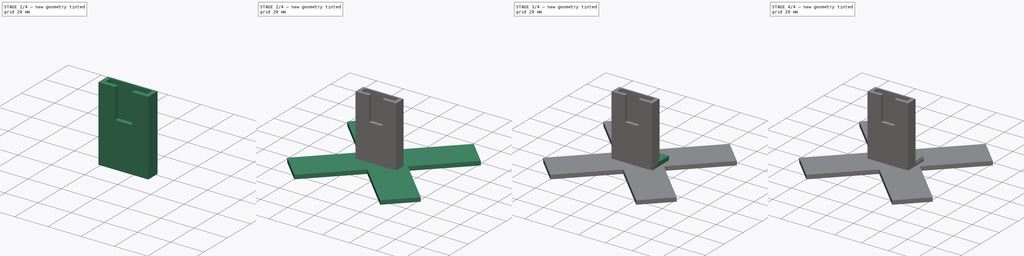
[diagram: build sequence overview — one tinted view per stage of 4, left to right]
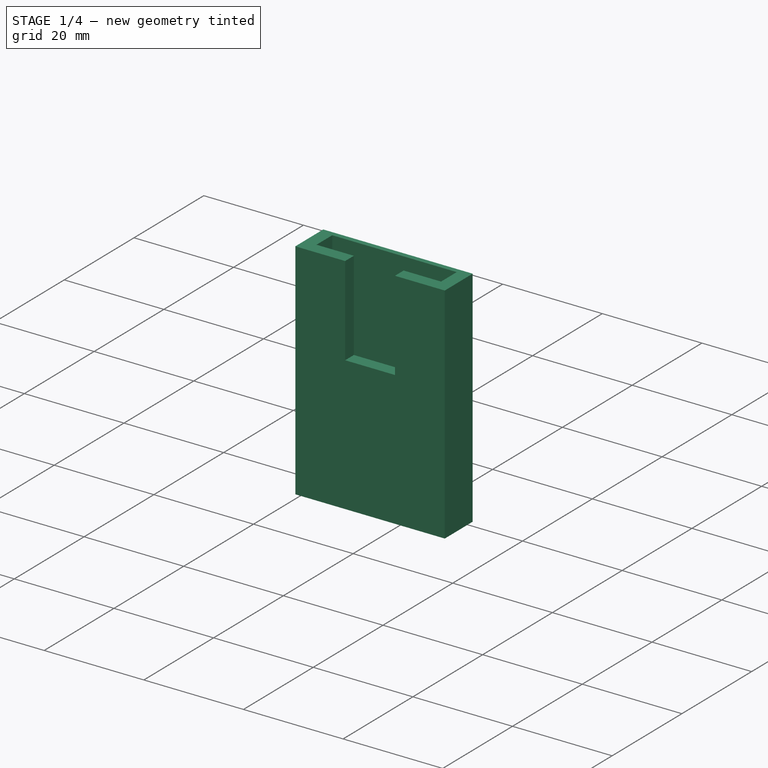
[diagram: stage 1 of 4 — iso view after this stage's code; geometry added in this stage tinted green]
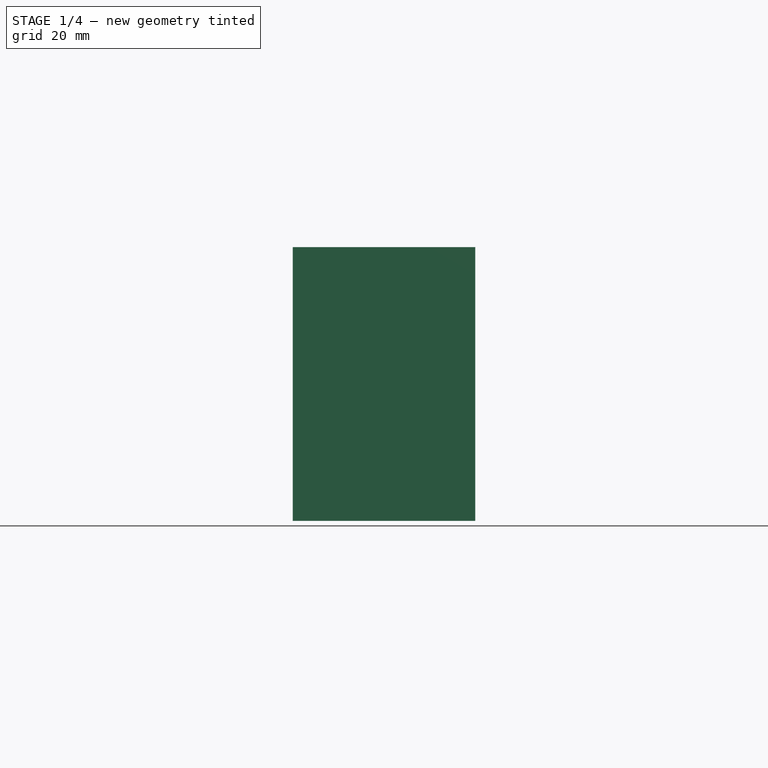
[diagram: stage 1 of 4 — front view after this stage's code; geometry added in this stage tinted green]
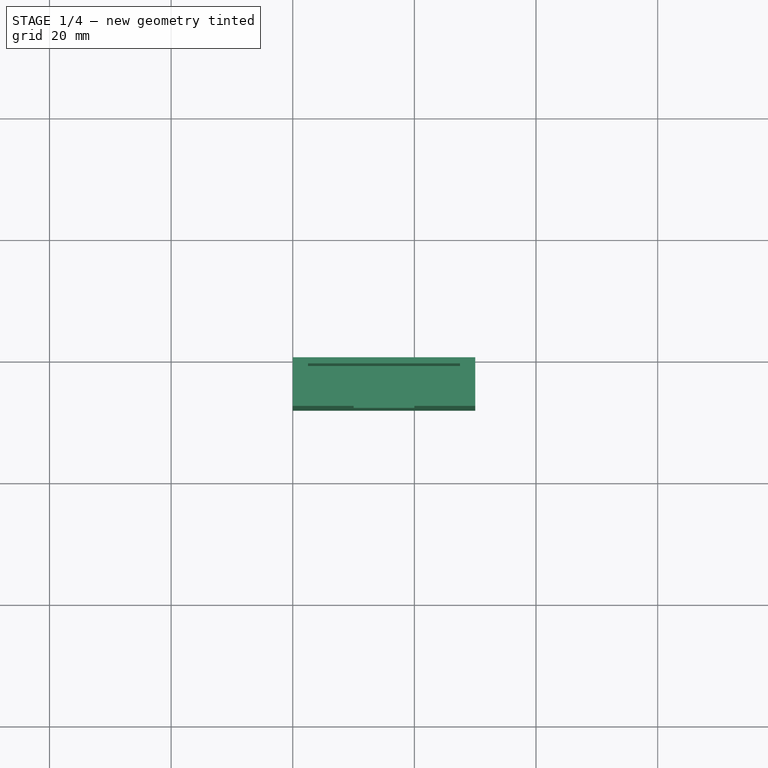
[diagram: stage 1 of 4 — top view after this stage's code; geometry added in this stage tinted green]
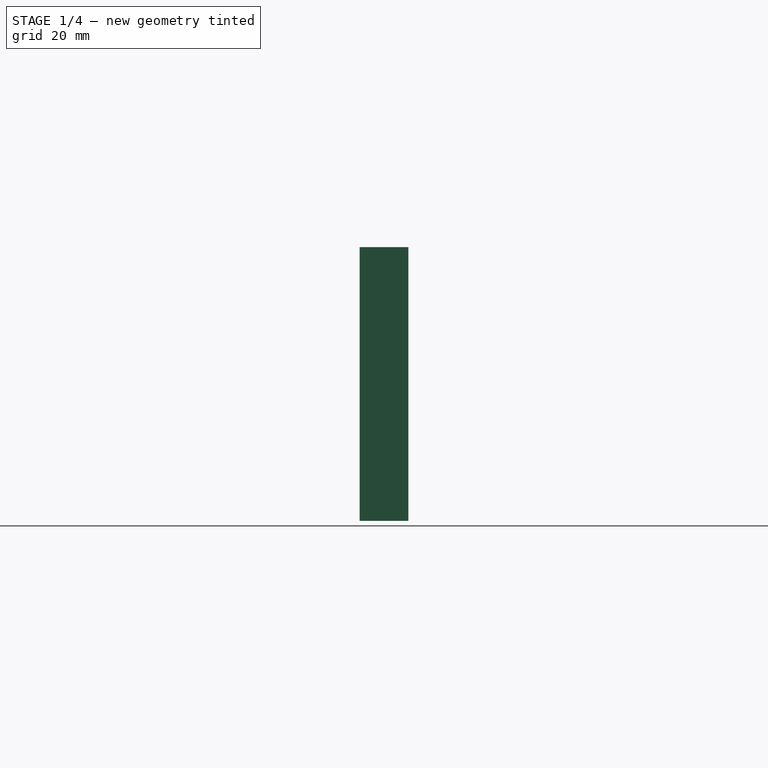
[diagram: stage 1 of 4 — right view after this stage's code; geometry added in this stage tinted green]
FCSTD DOCUMENT  (FreeCAD 0.18.4R)
Label: holder_dashcam
License: All rights reserved
LicenseURL: http://en.wikipedia.org/wiki/All_rights_reserved
objects: Sketcher::SketchObject×8, PartDesign::Pocket×5, PartDesign::Pad×4, PartDesign::Fillet×3, PartDesign::Body×1
note: 30 computed .brp shape members not serialized (recipe doc carries the construction recipe); baked Part::Feature solids carry a one-line shape summary decoded from their .brp

FEATURE [Sketcher::SketchObject] Sketch  label="holder"
  MapMode = 5
  Placement = pos=(0,0,0) rot=(1,0,0;1.5708rad)
  Support = -> [XZ_Plane]
  sketch-geometry (4):
    g0: LineSegment StartX=80 StartY=3 StartZ=0 EndX=110 EndY=3 EndZ=0
    g1: LineSegment StartX=110 StartY=3 StartZ=0 EndX=110 EndY=48 EndZ=0
    g2: LineSegment StartX=110 StartY=48 StartZ=0 EndX=80 EndY=48 EndZ=0
    g3: LineSegment StartX=80 StartY=48 StartZ=0 EndX=80 EndY=3 EndZ=0
  constraints (12):
    c: Coincident(g0,g1)
    c: Coincident(g1,g2)
    c: Coincident(g2,g3)
    c: Coincident(g3,g0)
    c: Horizontal(g0)
    c: Horizontal(g2)
    c: Vertical(g1)
    c: Vertical(g3)
    c: Distance(g2) = 30
    c: Distance(g1) = 45
    c: DistanceY(g-1,g0) = 3
    c: DistanceX(g-1,g2) = 80
FEATURE [PartDesign::Pad] Pad
  Length = 8
  Length2 = 100
  Placement = pos=(0,0,0) rot=(1,0,0;1.5708rad)
  Profile = -> Sketch
  Refine = true
  Type = 0
FEATURE [Sketcher::SketchObject] Sketch001  label="camera_cavity"
  ExternalGeometry = -> [Pad]
  MapMode = 5
  Placement = pos=(0,1.07e-14,48) rot=(0,0,1;3.14159rad)
  Support = -> [Pad]
  sketch-geometry (4):
    g0: LineSegment StartX=-107.5 StartY=5.5 StartZ=0 EndX=-82.5 EndY=5.5 EndZ=0
    g1: LineSegment StartX=-82.5 StartY=5.5 StartZ=0 EndX=-82.5 EndY=1 EndZ=0
    g2: LineSegment StartX=-82.5 StartY=1 StartZ=0 EndX=-107.5 EndY=1 EndZ=0
    g3: LineSegment StartX=-107.5 StartY=1 StartZ=0 EndX=-107.5 EndY=5.5 EndZ=0
  constraints (12):
    c: Coincident(g0,g1)
    c: Coincident(g1,g2)
    c: Coincident(g2,g3)
    c: Coincident(g3,g0)
    c: Horizontal(g0)
    c: Horizontal(g2)
    c: Vertical(g1)
    c: Vertical(g3)
    c: Distance(g3) = 4.5
    c: Distance(g2) = 25
    c: DistanceX(g0,g-3) = 2.5
    c: DistanceY(g0,g-4) = 2.5
FEATURE [PartDesign::Pocket] Pocket
  BaseFeature = -> Pad
  Length = 25
  Length2 = 100
  Placement = pos=(0,0,0) rot=(1,0,0;1.5708rad)
  Profile = -> Sketch001
  Refine = true
  Type = 0
FEATURE [Sketcher::SketchObject] Sketch002  label="camera_whole"
  ExternalGeometry = -> [Pocket]
  MapMode = 5
  Placement = pos=(0,-8,0) rot=(1,0,0;1.5708rad)
  Support = -> [Pocket]
  sketch-geometry (4):
    g0: LineSegment StartX=90 StartY=48 StartZ=0 EndX=100 EndY=48 EndZ=0
    g1: LineSegment StartX=100 StartY=48 StartZ=0 EndX=100 EndY=30 EndZ=0
    g2: LineSegment StartX=100 StartY=30 StartZ=0 EndX=90 EndY=30 EndZ=0
    g3: LineSegment StartX=90 StartY=30 StartZ=0 EndX=90 EndY=48 EndZ=0
  constraints (14):
    c: Coincident(g0,g1)
    c: Coincident(g1,g2)
    c: Coincident(g2,g3)
    c: Coincident(g3,g0)
    c: Horizontal(g0)
    c: Horizontal(g2)
    c: Vertical(g1)
    c: Vertical(g3)
    c: DistanceY(g-3) = 48
    c: DistanceY(g-3) = 48
    c: DistanceY(g0,g-3) = 0
    c: DistanceX(g0,g-4) = 10
    c: DistanceX(g-3,g0) = 10
    c: Distance(g1) = 18
FEATURE [PartDesign::Pocket] Pocket001
  BaseFeature = -> Pocket
  Length = 3
  Length2 = 100
  Placement = pos=(0,0,0) rot=(1,0,0;1.5708rad)
  Profile = -> Sketch002
  Refine = true
  Type = 0
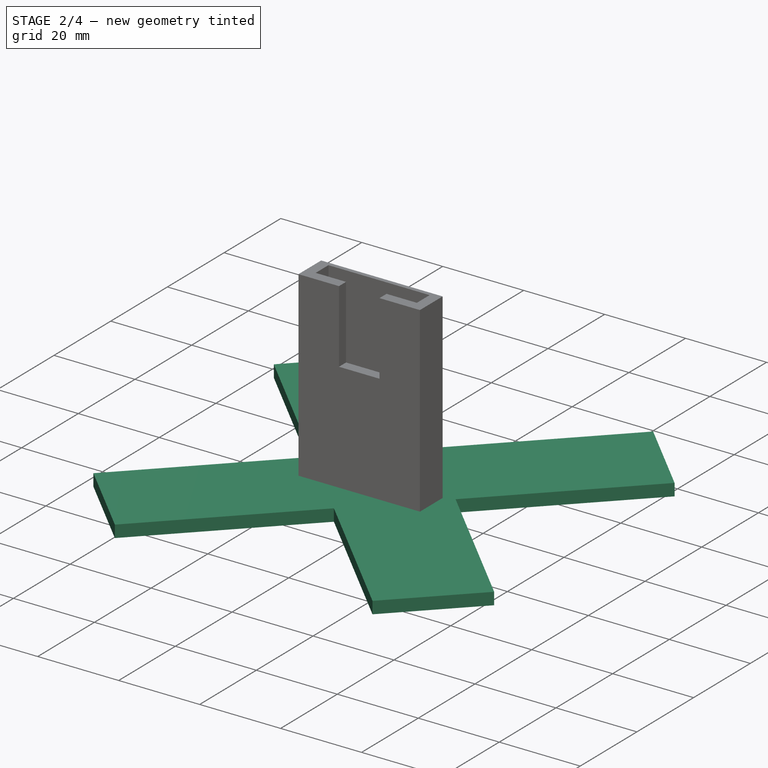
[diagram: stage 2 of 4 — iso view after this stage's code; geometry added in this stage tinted green]
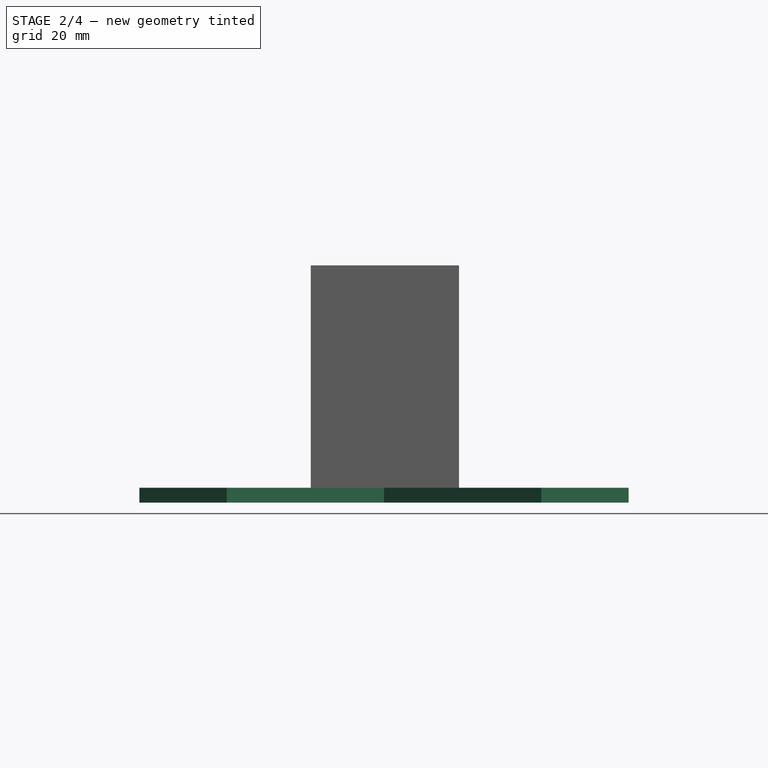
[diagram: stage 2 of 4 — front view after this stage's code; geometry added in this stage tinted green]
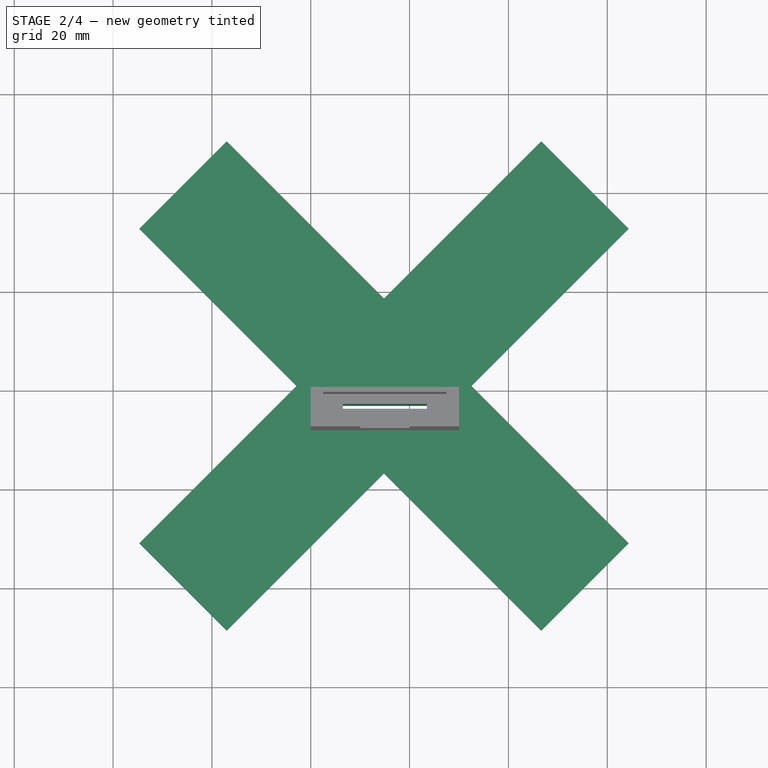
[diagram: stage 2 of 4 — top view after this stage's code; geometry added in this stage tinted green]
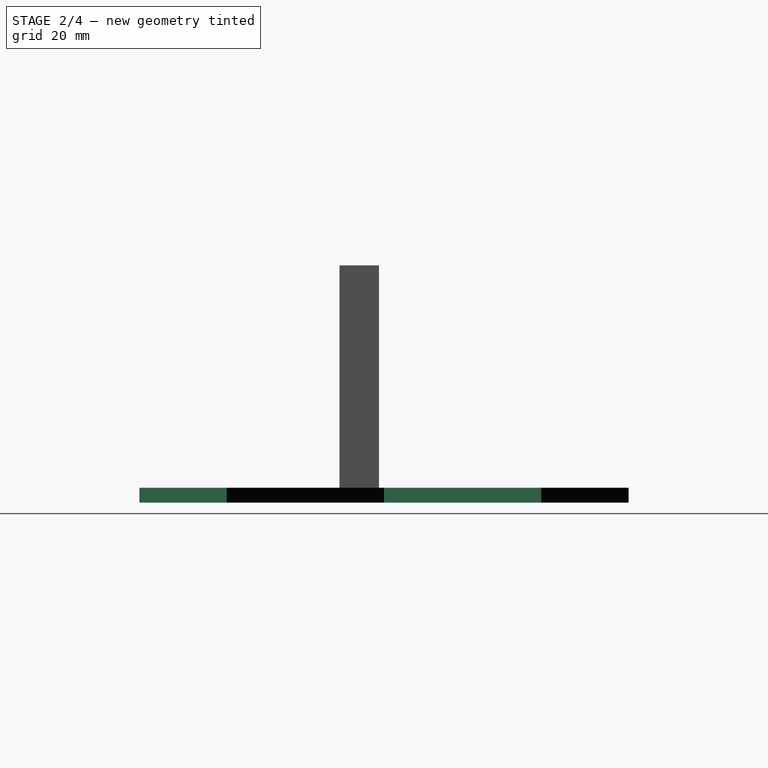
[diagram: stage 2 of 4 — right view after this stage's code; geometry added in this stage tinted green]
FEATURE [Sketcher::SketchObject] Sketch003  label="cable_canal"
  ExternalGeometry = -> [Pocket001]
  MapMode = 5
  Placement = pos=(0,7e-16,3) rot=(1,0,0;3.14159rad)
  Support = -> [Pocket001]
  sketch-geometry (4):
    g0: LineSegment StartX=86.5 StartY=4 StartZ=0 EndX=103.5 EndY=4 EndZ=0
    g1: LineSegment StartX=103.5 StartY=4 StartZ=0 EndX=103.5 EndY=3 EndZ=0
    g2: LineSegment StartX=103.5 StartY=3 StartZ=0 EndX=86.5 EndY=3 EndZ=0
    g3: LineSegment StartX=86.5 StartY=3 StartZ=0 EndX=86.5 EndY=4 EndZ=0
  constraints (12):
    c: Coincident(g0,g1)
    c: Coincident(g1,g2)
    c: Coincident(g2,g3)
    c: Coincident(g3,g0)
    c: Horizontal(g0)
    c: Horizontal(g2)
    c: Vertical(g1)
    c: Vertical(g3)
    c: DistanceX(g-4,g0) = 6.5
    c: DistanceX(g0,g-3) = 6.5
    c: Distance(g1) = 1
    c: DistanceY(g0,g-4) = 4
FEATURE [PartDesign::Pocket] Pocket002
  BaseFeature = -> Pocket001
  Length = 40
  Length2 = 100
  Placement = pos=(0,0,0) rot=(1,0,0;1.5708rad)
  Profile = -> Sketch003
  Refine = true
  Type = 0
FEATURE [Sketcher::SketchObject] Sketch005  label="base"
  MapMode = 5
  Placement = pos=(0,7e-16,3) rot=(1,0,0;3.14159rad)
  sketch-geometry (17):
    g0: LineSegment StartX=45.3249 StartY=30.8199 StartZ=0 EndX=63.0026 EndY=48.4976 EndZ=0
    g1: LineSegment StartX=63.0026 StartY=48.4976 StartZ=0 EndX=94.8224 EndY=16.6777 EndZ=0
    g2: LineSegment StartX=94.8224 StartY=16.6777 StartZ=0 EndX=126.642 EndY=48.4975 EndZ=0
    g3: LineSegment StartX=126.642 StartY=48.4975 StartZ=0 EndX=144.32 EndY=30.8198 EndZ=0
    g4: LineSegment StartX=144.32 StartY=30.8198 StartZ=0 EndX=112.5 EndY=-1 EndZ=0
    g5: LineSegment StartX=112.5 StartY=-1 StartZ=0 EndX=144.32 EndY=-32.8199 EndZ=0
    g6: LineSegment StartX=144.32 StartY=-32.8199 StartZ=0 EndX=126.642 EndY=-50.4975 EndZ=0
    g7: LineSegment StartX=126.642 StartY=-50.4975 StartZ=0 EndX=94.8224 EndY=-18.6777 EndZ=0
    g8: LineSegment StartX=94.8224 StartY=-18.6777 StartZ=0 EndX=63.0025 EndY=-50.4975 EndZ=0
    g9: LineSegment StartX=63.0025 StartY=-50.4975 StartZ=0 EndX=45.3249 EndY=-32.8198 EndZ=0
    g10: LineSegment StartX=45.3249 StartY=-32.8198 StartZ=0 EndX=77.1447 EndY=-1 EndZ=0
    g11: LineSegment StartX=77.1447 StartY=-1 StartZ=0 EndX=45.3249 EndY=30.8199 EndZ=0
    g12: LineSegment [constr] StartX=112.5 StartY=-1 StartZ=0 EndX=94.8224 EndY=16.6777 EndZ=0
    g13: GeomPoint X=94.8224 Y=16.6777 Z=0
    g14: GeomPoint X=94.8224 Y=16.6777 Z=0
    g15: LineSegment [constr] StartX=94.8224 StartY=16.6777 StartZ=0 EndX=77.1447 EndY=-1 EndZ=0
    g16: LineSegment [constr] StartX=77.1447 StartY=-1 StartZ=0 EndX=112.5 EndY=-1 EndZ=0
  constraints (42):
    c: Coincident(g0,g1)
    c: Coincident(g1,g2)
    c: Coincident(g2,g3)
    c: Coincident(g3,g4)
    c: Coincident(g4,g5)
    c: Coincident(g5,g6)
    c: Coincident(g6,g7)
    c: Coincident(g7,g8)
    c: Coincident(g8,g9)
    c: Coincident(g9,g10)
    c: Coincident(g10,g11)
    c: Coincident(g11,g0)
    c: Parallel(g11,g1)
    c: Parallel(g2,g4)
    c: Parallel(g5,g7)
    c: Parallel(g8,g10)
    c: Parallel(g9,g3)
    c: Parallel(g6,g0)
    c: Perpendicular(g3,g2)
    c: Perpendicular(g1,g0)
    c: Perpendicular(g9,g10)
    c: Perpendicular(g6,g5)
    c: Equal(g0,g9)
    c: Equal(g3,g0)
    c: Equal(g3,g6)
    c: Distance(g9) = 25
    c: Coincident(g12,g4)
    c: Coincident(g13,g12)
    c: Coincident(g14,g1)
    c: Coincident(g13,g1)
    c: Coincident(g15,g10)
    c: Coincident(g15,g1)
    c: Equal(g15,g12)
    c: Perpendicular(g2,g12)
    c: Equal(g10,g2)
    c: Equal(g1,g5)
    c: Equal(g1,g2)
    c: Distance(g10) = 45
    c: Perpendicular(g5,g4)
    c: Coincident(g16,g10)
    c: Coincident(g16,g4)
    c: Distance(g16) = 35.3553
FEATURE [PartDesign::Pad] Pad001
  BaseFeature = -> Pocket002
  Length = 3
  Length2 = 100
  Placement = pos=(0,0,0) rot=(1,0,0;1.5708rad)
  Profile = -> Sketch005
  Refine = true
  Type = 0
FEATURE [Sketcher::SketchObject] CopySketch009
  Placement = pos=(0,0,3) rot=(1,0,0;3.14159rad)
  sketch-geometry (4):
    g0: LineSegment StartX=86.5 StartY=4 StartZ=0 EndX=103.5 EndY=4 EndZ=0
    g1: LineSegment StartX=103.5 StartY=4 StartZ=0 EndX=103.5 EndY=3 EndZ=0
    g2: LineSegment StartX=103.5 StartY=3 StartZ=0 EndX=86.5 EndY=3 EndZ=0
    g3: LineSegment StartX=86.5 StartY=3 StartZ=0 EndX=86.5 EndY=4 EndZ=0
  constraints (9):
    c: Coincident(g0,g1)
    c: Coincident(g1,g2)
    c: Coincident(g2,g3)
    c: Coincident(g3,g0)
    c: Horizontal(g0)
    c: Horizontal(g2)
    c: Vertical(g1)
    c: Vertical(g3)
    c: Distance(g1) = 1
FEATURE [PartDesign::Pocket] Pocket006
  BaseFeature = -> Pad001
  Length = 11
  Length2 = 100
  Placement = pos=(0,0,0) rot=(1,0,0;1.5708rad)
  Profile = -> CopySketch009
  Refine = true
  Reversed = true
  Type = 0
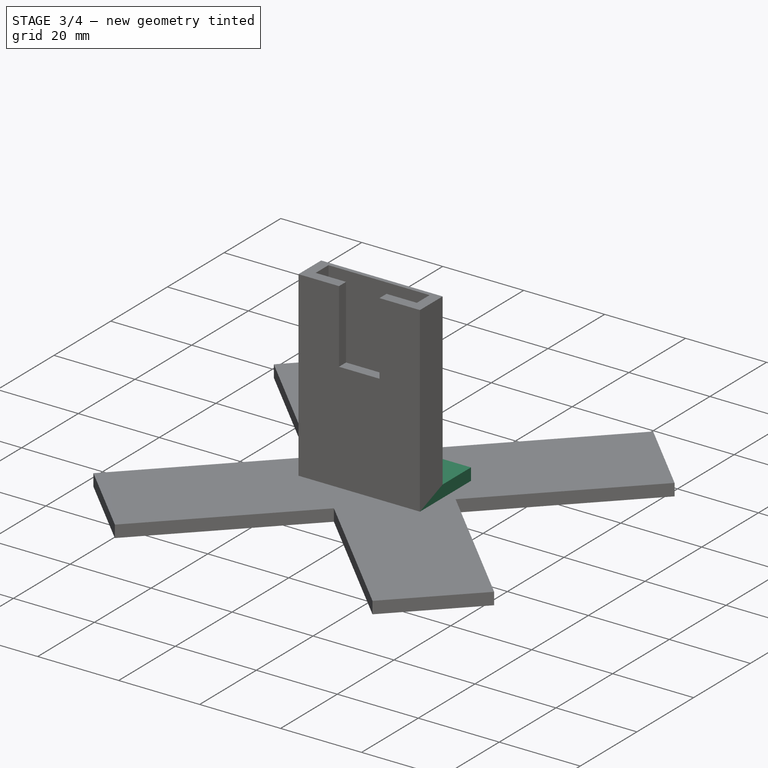
[diagram: stage 3 of 4 — iso view after this stage's code; geometry added in this stage tinted green]
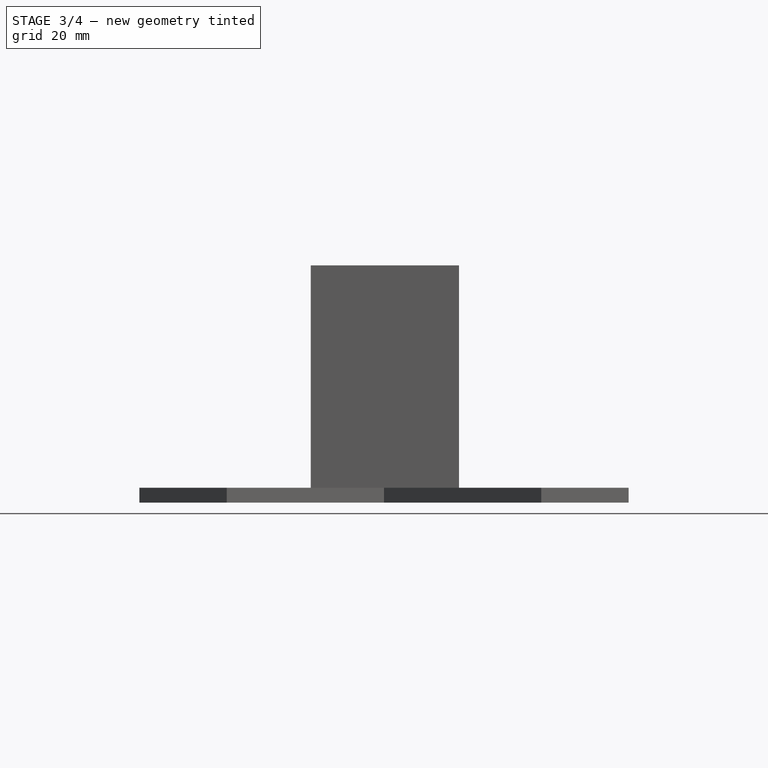
[diagram: stage 3 of 4 — front view after this stage's code; geometry added in this stage tinted green]
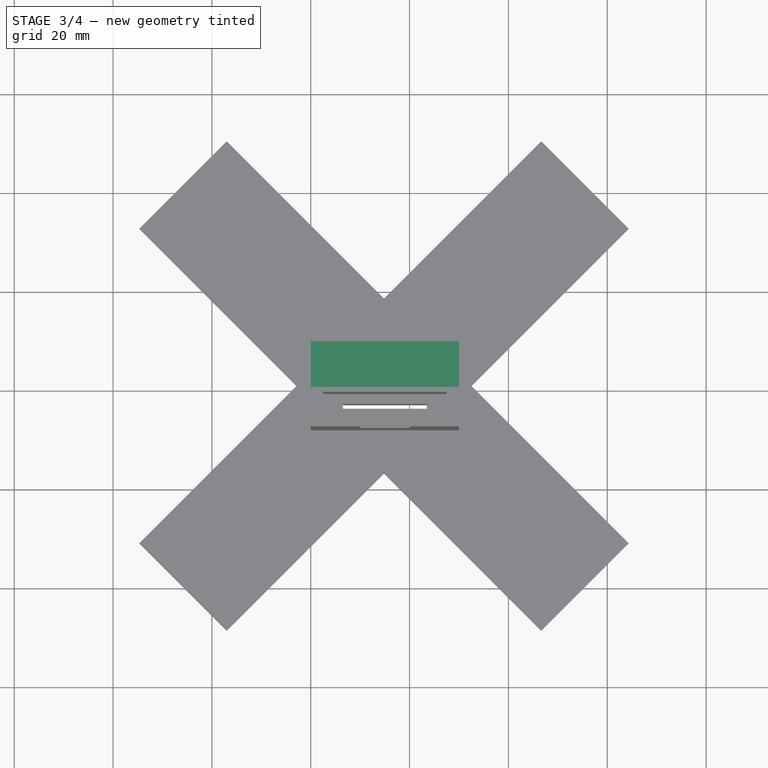
[diagram: stage 3 of 4 — top view after this stage's code; geometry added in this stage tinted green]
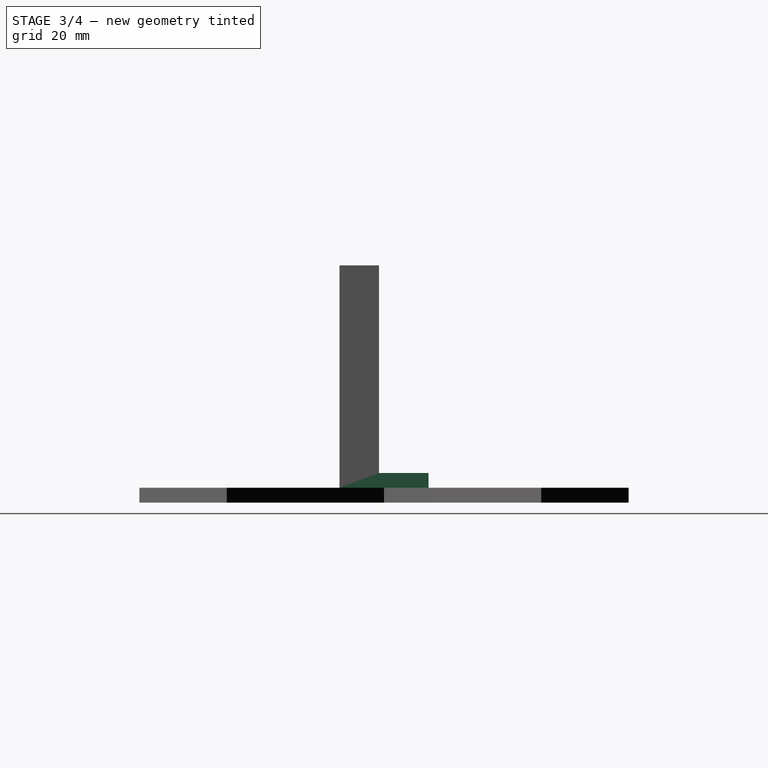
[diagram: stage 3 of 4 — right view after this stage's code; geometry added in this stage tinted green]
FEATURE [Sketcher::SketchObject] Sketch010
  ExternalGeometry = -> [Pocket006]
  MapMode = 5
  Placement = pos=(0,0,1.3e-15) rot=(1,0,0;3.14159rad)
  Support = -> [Pocket006]
  sketch-geometry (4):
    g0: LineSegment StartX=86.5 StartY=3 StartZ=0 EndX=103.5 EndY=3 EndZ=0
    g1: LineSegment StartX=103.5 StartY=3 StartZ=0 EndX=103.5 EndY=-29.76 EndZ=0
    g2: LineSegment StartX=103.5 StartY=-29.76 StartZ=0 EndX=86.5 EndY=-29.76 EndZ=0
    g3: LineSegment StartX=86.5 StartY=-29.76 StartZ=0 EndX=86.5 EndY=3 EndZ=0
  constraints (11):
    c: Coincident(g0,g1)
    c: Coincident(g1,g2)
    c: Coincident(g2,g3)
    c: Coincident(g3,g0)
    c: Horizontal(g0)
    c: Horizontal(g2)
    c: Vertical(g1)
    c: Vertical(g3)
    c: Coincident(g0,g-4)
    c: Equal(g0,g-3)
    c: Distance(g1) = 32.76
FEATURE [PartDesign::Pocket] Pocket007
  BaseFeature = -> Pocket006
  Length = 1.5
  Length2 = 100
  Placement = pos=(0,0,0) rot=(1,0,0;1.5708rad)
  Profile = -> Sketch010
  Refine = true
  Type = 0
FEATURE [PartDesign::Fillet] Fillet
  Base = -> Pocket007 [Edge65]
  BaseFeature = -> Pocket007
  Placement = pos=(0,0,0) rot=(1,0,0;1.5708rad)
  Radius = 5
FEATURE [Sketcher::SketchObject] Sketch011
  ExternalGeometry = -> [Fillet]
  MapMode = 5
  Placement = pos=(0,0,0) rot=(-1,0,0;1.5708rad)
  Support = -> [Fillet]
  sketch-geometry (6):
    g0: LineSegment StartX=80 StartY=-3 StartZ=0 EndX=110 EndY=-3 EndZ=0
    g1: LineSegment StartX=110 StartY=-3 StartZ=0 EndX=110 EndY=-6 EndZ=0
    g2: LineSegment StartX=110 StartY=-6 StartZ=0 EndX=80 EndY=-6 EndZ=0
    g3: LineSegment StartX=80 StartY=-6 StartZ=0 EndX=80 EndY=-3 EndZ=0
    g4: GeomPoint X=110 Y=-3 Z=0
    g5: GeomPoint X=110 Y=-3 Z=0
  constraints (13):
    c: Coincident(g0,g1)
    c: Coincident(g1,g2)
    c: Coincident(g2,g3)
    c: Coincident(g3,g0)
    c: Horizontal(g0)
    c: Horizontal(g2)
    c: Vertical(g1)
    c: Vertical(g3)
    c: Coincident(g4,g0)
    c: Coincident(g0,g5)
    c: Coincident(g0,g-4)
    c: Equal(g0,g-7)
    c: DistanceY(g1,g0) = 3
FEATURE [PartDesign::Pad] Pad003
  BaseFeature = -> Fillet
  Length = 10
  Length2 = 100
  Placement = pos=(0,0,0) rot=(1,0,0;1.5708rad)
  Profile = -> Sketch011
  Refine = true
  Type = 0
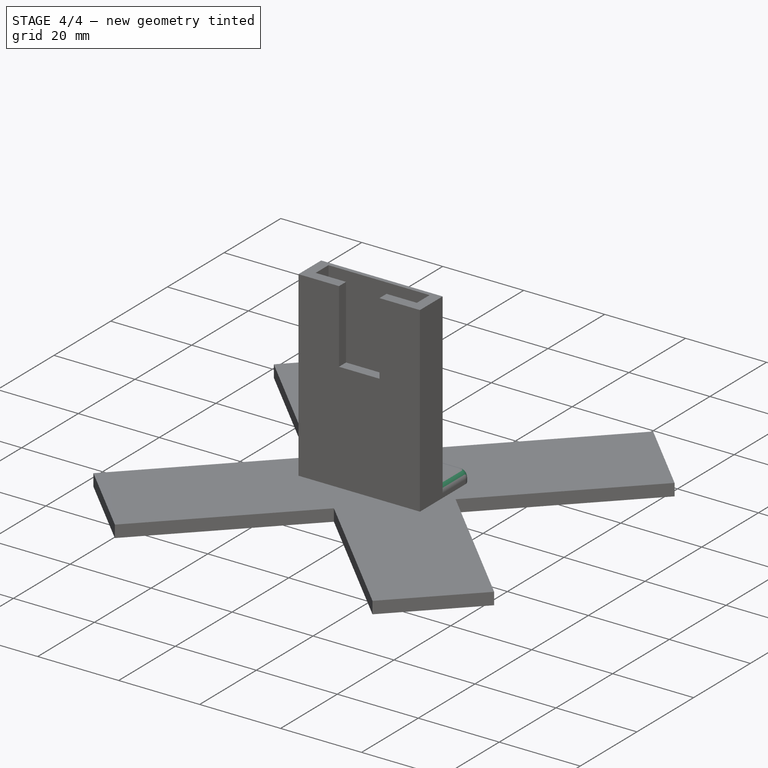
[diagram: stage 4 of 4 — iso view after this stage's code; geometry added in this stage tinted green]
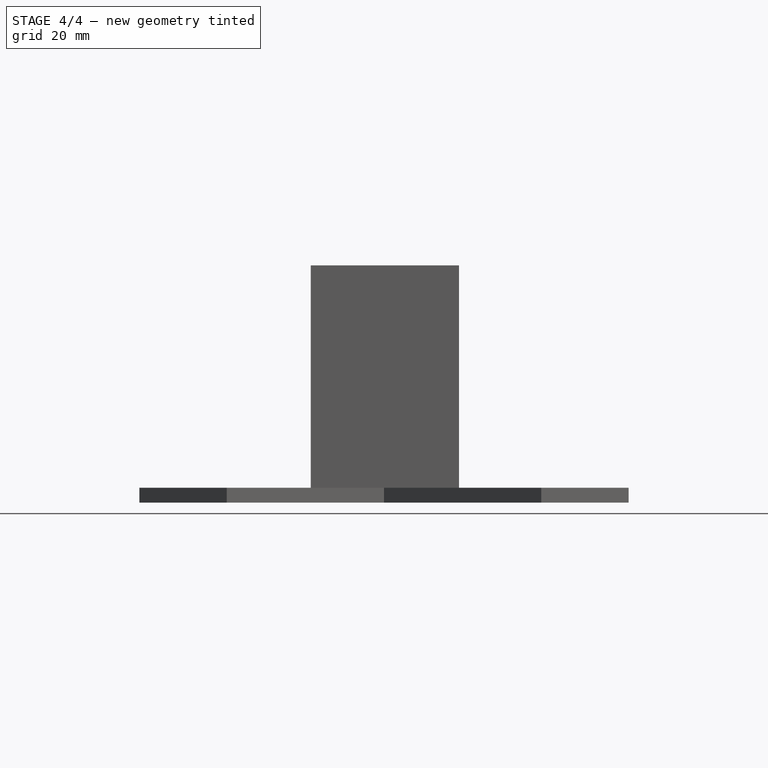
[diagram: stage 4 of 4 — front view after this stage's code; geometry added in this stage tinted green]
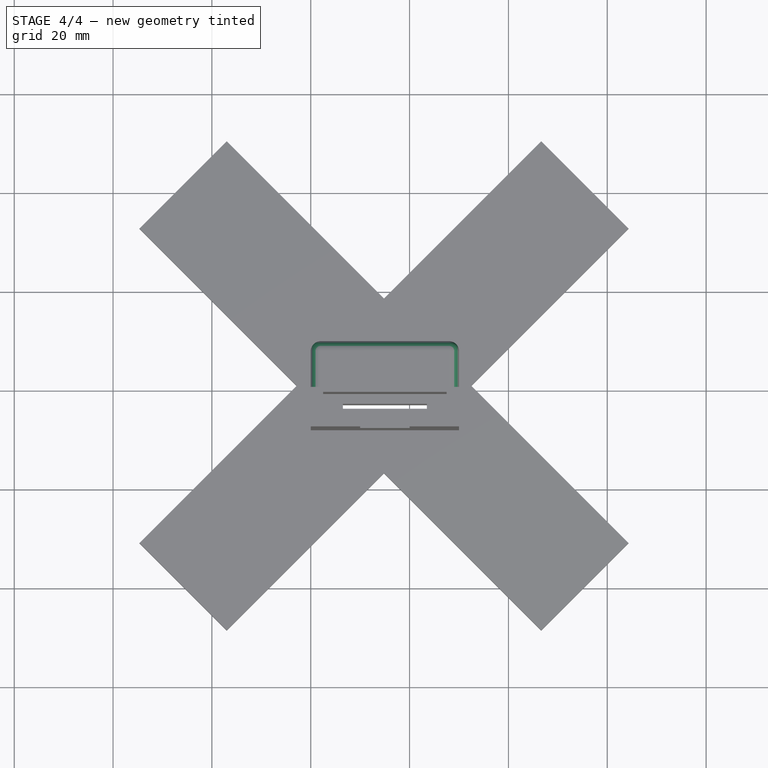
[diagram: stage 4 of 4 — top view after this stage's code; geometry added in this stage tinted green]
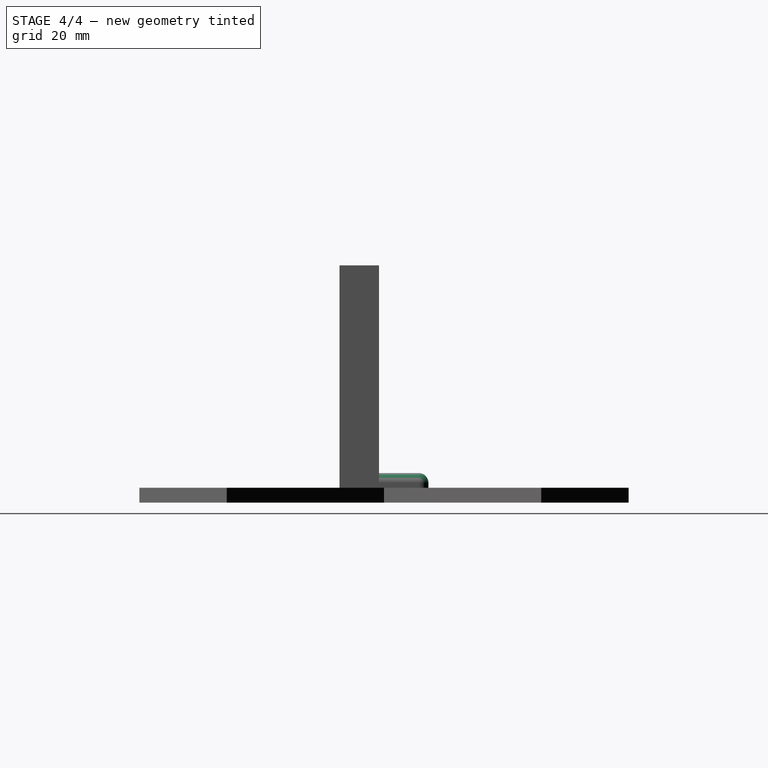
[diagram: stage 4 of 4 — right view after this stage's code; geometry added in this stage tinted green]
FEATURE [PartDesign::Fillet] Fillet001
  Base = -> Pad003 [Edge98,Edge85,Edge86,Edge99,Edge87]
  BaseFeature = -> Pad003
  Placement = pos=(0,0,0) rot=(1,0,0;1.5708rad)
  Radius = 2
FEATURE [PartDesign::Pad] Pad004
  BaseFeature = -> Fillet001
  Length = 10
  Length2 = 100
  Placement = pos=(0,0,0) rot=(1,0,0;1.5708rad)
  Profile = -> Sketch011
  Refine = true
  Type = 0
FEATURE [PartDesign::Fillet] Fillet002
  Base = -> Pad004 [Vertex66,Edge99,Edge95,Edge96,Edge97,Edge98]
  BaseFeature = -> Pad004
  Placement = pos=(0,0,0) rot=(1,0,0;1.5708rad)
  Radius = 2
FEATURE [PartDesign::Body] Body
  Group = -> [Sketch,Pad,Sketch001,Pocket,Sketch002,Pocket001,Sketch003,Pocket002,Sketch005,Pad001,Pocket006,Sketch010,Pocket007,Fillet,Sketch011,Pad003,Fillet001,Pad004,Fillet002]
  Origin = -> Origin
  Tip = -> Fillet002
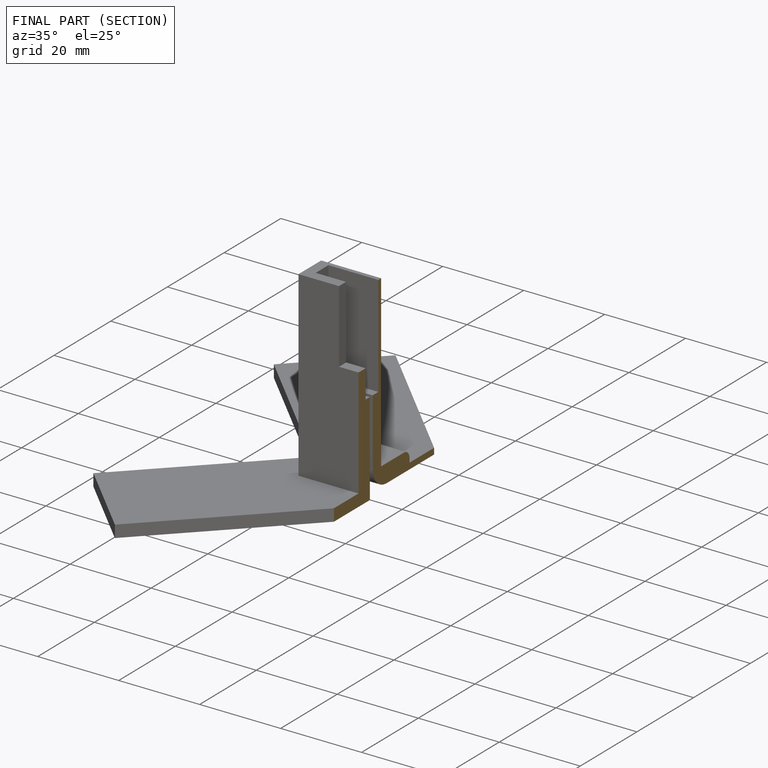
[diagram: finished part — half-section view (interior)]
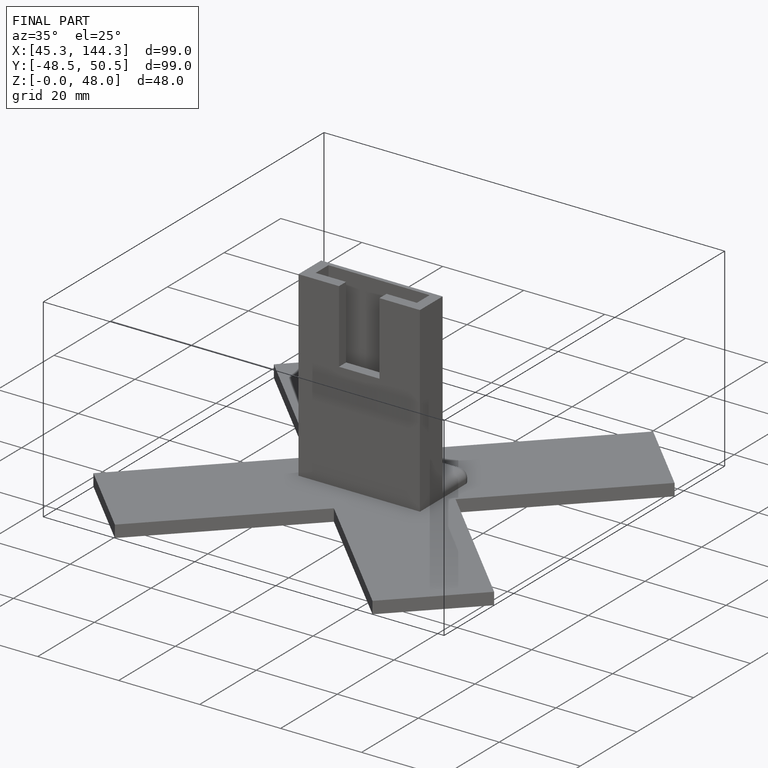
[diagram: finished part — iso view with bounding-box wireframe]
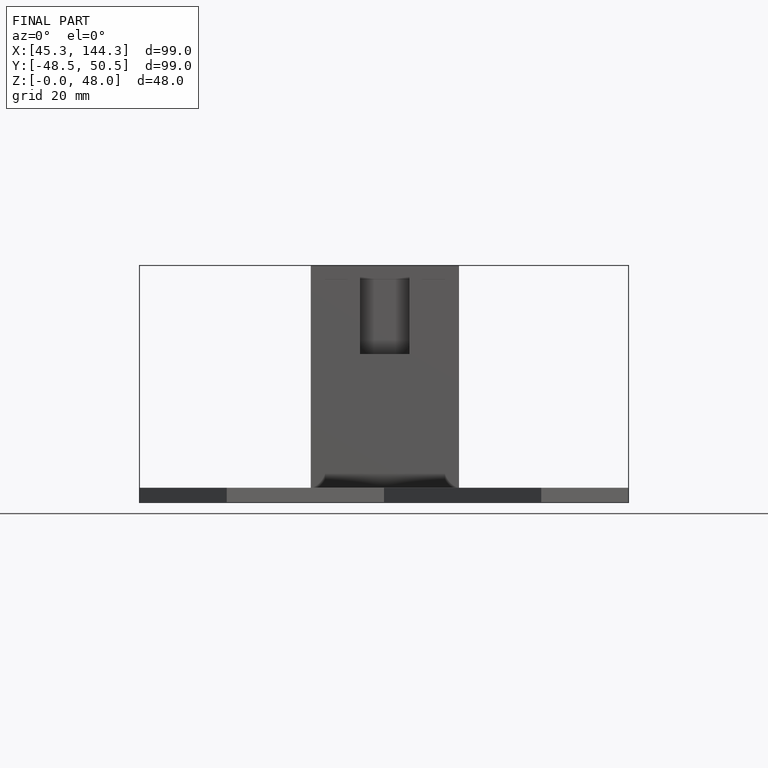
[diagram: finished part — front view with bounding-box wireframe]
